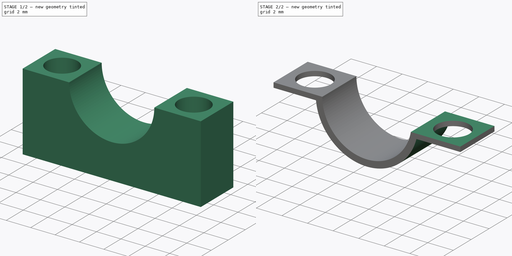
[diagram: build sequence overview — one tinted view per stage of 2, left to right]
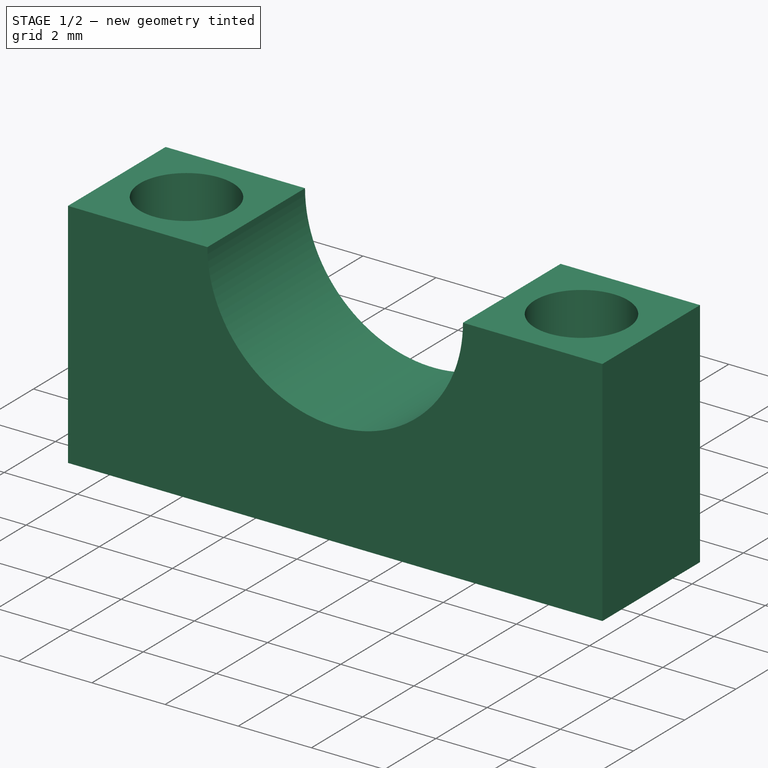
[diagram: stage 1 of 2 — iso view after this stage's code; geometry added in this stage tinted green]
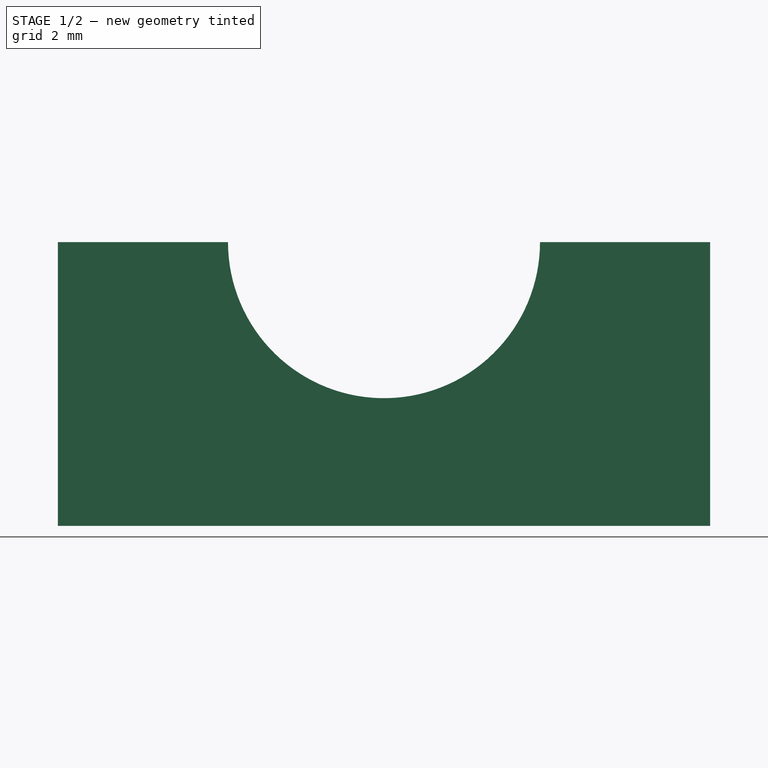
[diagram: stage 1 of 2 — front view after this stage's code; geometry added in this stage tinted green]
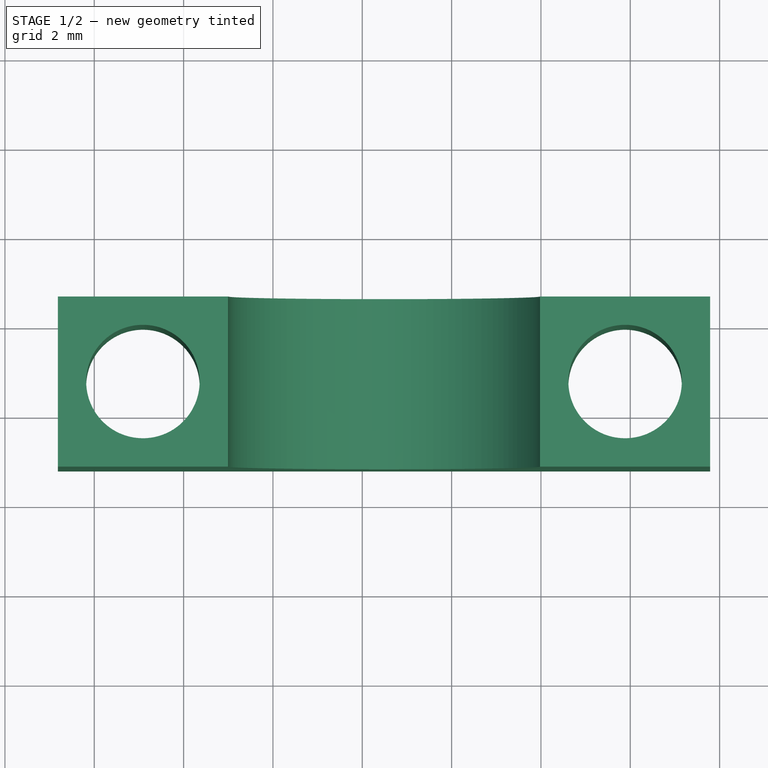
[diagram: stage 1 of 2 — top view after this stage's code; geometry added in this stage tinted green]
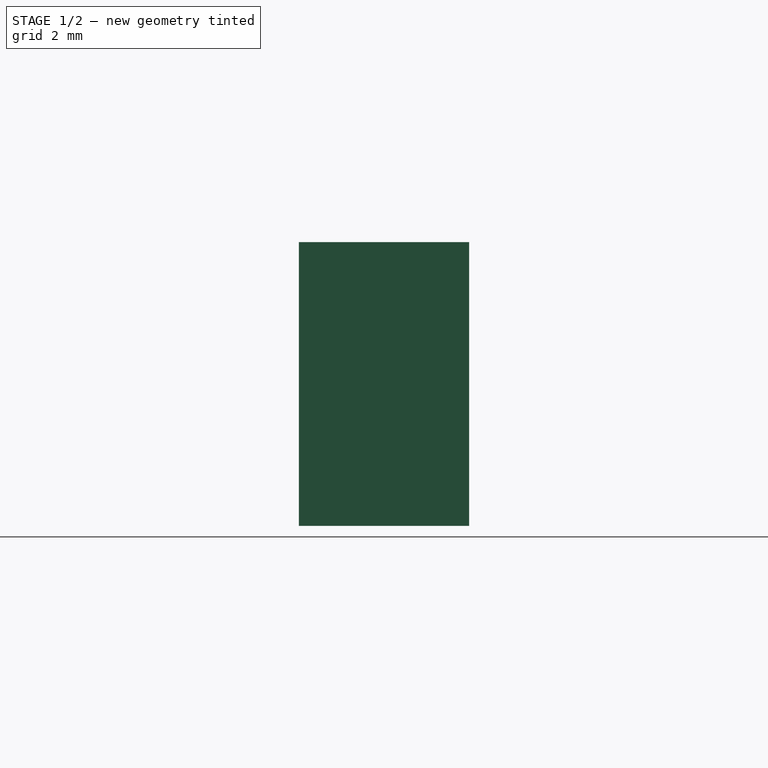
[diagram: stage 1 of 2 — right view after this stage's code; geometry added in this stage tinted green]
FCSTD DOCUMENT  (FreeCAD 1.0R39285 (Git))
Label: obd_wire_top
License: All rights reserved
LicenseURL: http://en.wikipedia.org/wiki/All_rights_reserved
objects: Sketcher::SketchObject×4, PartDesign::Pocket×3, Measure::MeasureLength×3, PartDesign::Plane×2, PartDesign::Pad×1, PartDesign::Body×1, App::DocumentObjectGroup×1
note: 23 computed .brp shape members not serialized (recipe doc carries the construction recipe); baked Part::Feature solids carry a one-line shape summary decoded from their .brp

FEATURE [Sketcher::SketchObject] Sketch
  ArcFitTolerance = 1e-06
  AttachmentSupport = -> [XY_Plane]
  FullyConstrained = false
  MakeInternals = false
  MapMode = 5
  sketch-geometry (8):
    g0: LineSegment StartX=1.18376 StartY=6.61182 StartZ=0 EndX=1.18376 EndY=2.80182 EndZ=0
    g1: LineSegment StartX=1.18376 StartY=2.80182 StartZ=0 EndX=15.7888 EndY=2.80182 EndZ=0
    g2: LineSegment StartX=15.7888 StartY=2.80182 StartZ=0 EndX=15.7888 EndY=6.61182 EndZ=0
    g3: LineSegment StartX=15.7888 StartY=6.61182 StartZ=0 EndX=1.18376 EndY=6.61182 EndZ=0
    g4: LineSegment [constr] StartX=1.18376 StartY=4.70682 StartZ=0 EndX=3.08876 EndY=4.70682 EndZ=0
    g5: LineSegment [constr] StartX=15.7888 StartY=4.70682 StartZ=0 EndX=13.8838 EndY=4.70682 EndZ=0
    g6: Circle CenterX=3.08876 CenterY=4.70682 CenterZ=0 NormalX=0 NormalY=0 NormalZ=1 AngleXU=0 Radius=1.27
    g7: Circle CenterX=13.8838 CenterY=4.70682 CenterZ=0 NormalX=0 NormalY=0 NormalZ=1 AngleXU=0 Radius=1.27
  constraints (20):
    c: Coincident(g0,g1)
    c: Coincident(g1,g2)
    c: Coincident(g2,g3)
    c: Coincident(g3,g0)
    c: Vertical(g0)
    c: Vertical(g2)
    c: Horizontal(g1)
    c: Horizontal(g3)
    c: Distance(g0,g2) = 14.605
    c: Distance(g1,g3) = 3.81
    c: Distance(g4) = 1.905
    c: Symmetric(g0,g0,g4)
    c: Horizontal(g4)
    c: Distance(g5) = 1.905
    c: Symmetric(g2,g2,g5)
    c: Horizontal(g5)
    c: Diameter(g6) = 2.54
    c: Coincident(g6,g4)
    c: Coincident(g7,g5)
    c: Equal(g7,g6)
FEATURE [PartDesign::Pad] Pad
  Direction = (0,0,1)
  Length = 6.35
  Length2 = 10
  Profile = -> Sketch
  ReferenceAxis = -> Sketch [N_Axis]
  Refine = true
  Suppressed = false
  Type = 0
FEATURE [PartDesign::Plane] DatumPlane
  AttachmentSupport = -> [Pad]
  Length = 60
  MapMode = 5
  Placement = pos=(0,2.80182,0) rot=(1,0,0;1.5708rad)
  ResizeMode = 0
  Width = 60
FEATURE [Sketcher::SketchObject] Sketch001
  ArcFitTolerance = 1e-06
  AttachmentSupport = -> [Pad]
  ExternalGeometry = -> [Pad]
  FullyConstrained = true
  MakeInternals = false
  MapMode = 5
  Placement = pos=(0,2.80182,0) rot=(1,0,0;1.5708rad)
  sketch-geometry (1):
    g0: Circle CenterX=8.48626 CenterY=6.35 CenterZ=0 NormalX=0 NormalY=0 NormalZ=1 AngleXU=0 Radius=3.4925
  constraints (2):
    c: Diameter(g0) = 6.985
    c: Symmetric(g-3,g-3,g0)
FEATURE [PartDesign::Pocket] Pocket
  BaseFeature = -> Pad
  Direction = (0,1,-2e-16)
  Length = 5
  Length2 = 5
  Profile = -> Sketch001
  ReferenceAxis = -> Sketch001 [N_Axis]
  Refine = true
  Suppressed = false
  Type = 1
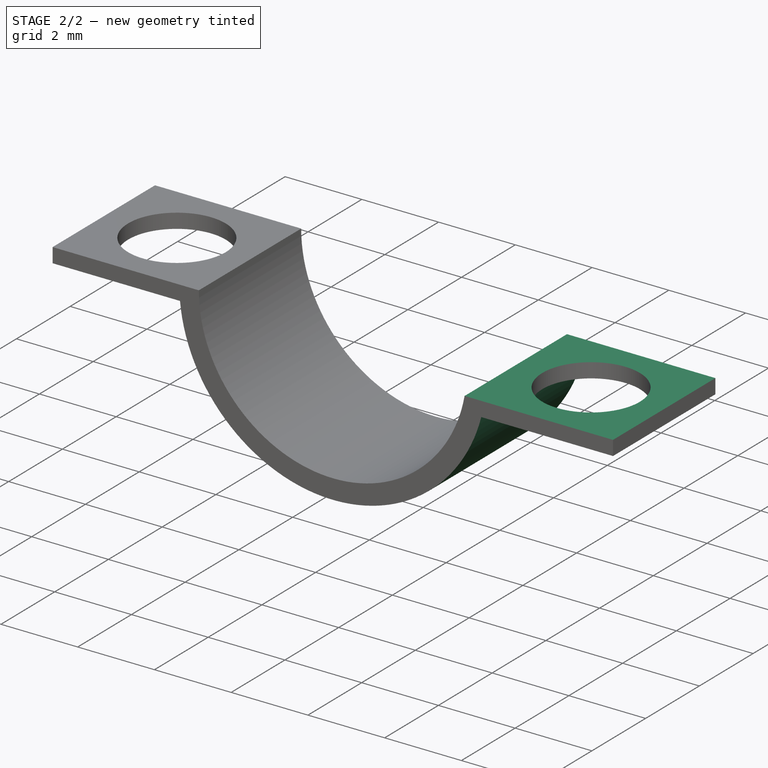
[diagram: stage 2 of 2 — iso view after this stage's code; geometry added in this stage tinted green]
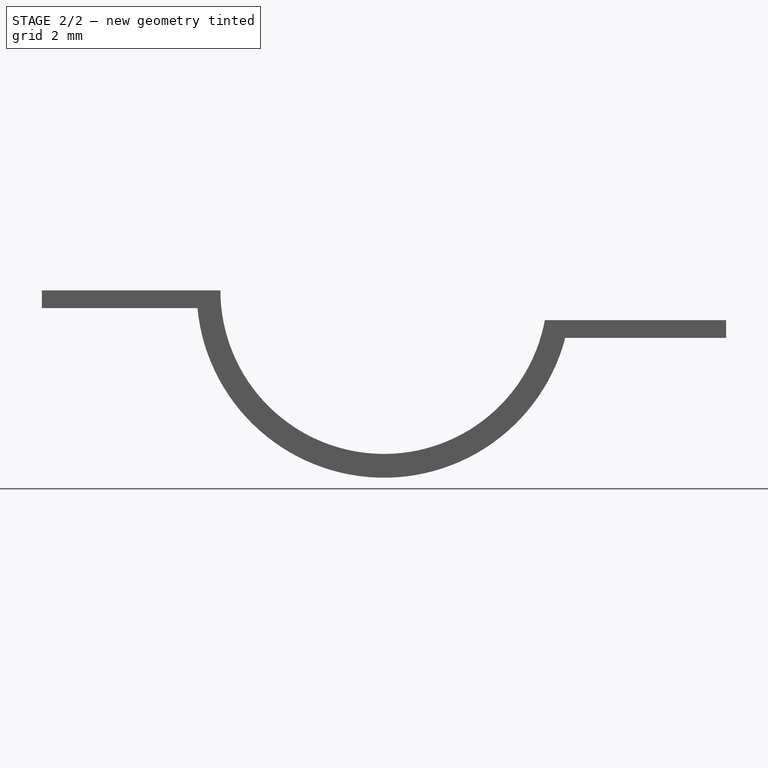
[diagram: stage 2 of 2 — front view after this stage's code; geometry added in this stage tinted green]
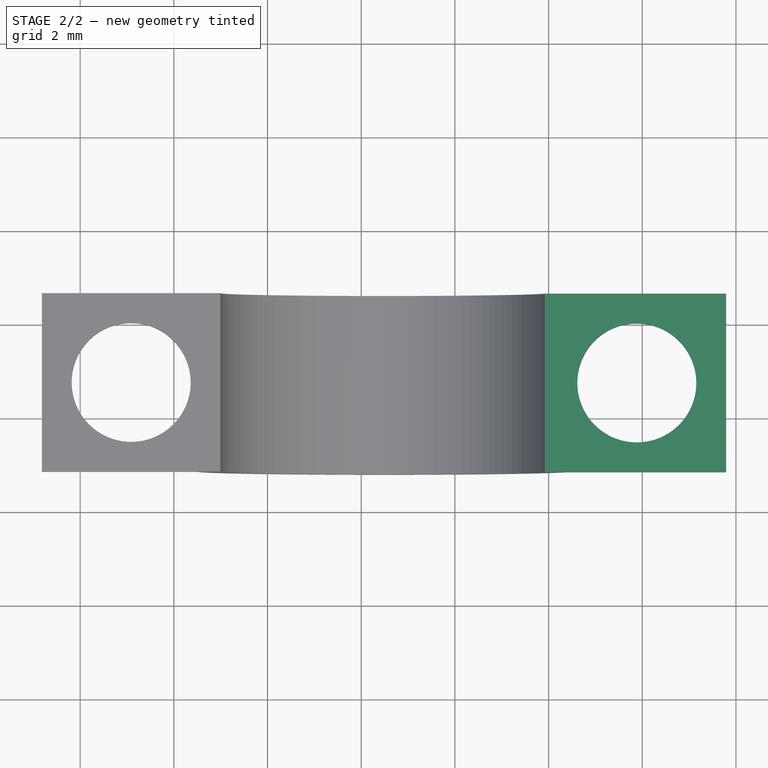
[diagram: stage 2 of 2 — top view after this stage's code; geometry added in this stage tinted green]
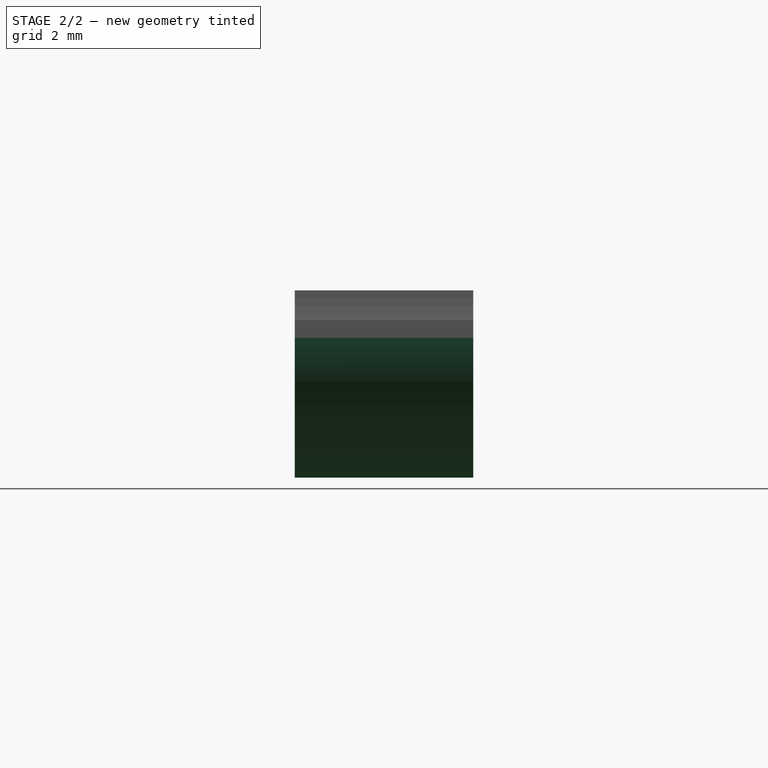
[diagram: stage 2 of 2 — right view after this stage's code; geometry added in this stage tinted green]
FEATURE [PartDesign::Plane] DatumPlane001
  AttachmentSupport = -> [Pocket]
  Length = 60
  MapMode = 5
  Placement = pos=(0,2.80182,0) rot=(1,0,0;1.5708rad)
  ResizeMode = 0
  Width = 60
FEATURE [Sketcher::SketchObject] Sketch003
  ArcFitTolerance = 1e-06
  AttachmentSupport = -> [XZ_Plane]
  ExternalGeometry = -> [Pocket]
  FullyConstrained = false
  MakeInternals = false
  MapMode = 5
  Placement = pos=(0,0,0) rot=(1,0,0;1.5708rad)
  sketch-geometry (5):
    g0: LineSegment StartX=15.7888 StartY=6.35 StartZ=0 EndX=15.7888 EndY=6.35 EndZ=0
    g1: LineSegment StartX=15.7888 StartY=6.35 StartZ=0 EndX=15.7888 EndY=5.715 EndZ=0
    g2: LineSegment StartX=15.7888 StartY=5.715 StartZ=0 EndX=10.3798 EndY=5.715 EndZ=0
    g3: LineSegment StartX=10.3798 StartY=5.715 StartZ=0 EndX=10.489 EndY=7.4666 EndZ=0
    g4: LineSegment StartX=10.489 StartY=7.4666 StartZ=0 EndX=15.7888 EndY=6.35 EndZ=0
  constraints (10):
    c: Coincident(g0,g-3)
    c: Coincident(g0,g-3)
    c: Distance(g1) = 0.635
    c: Coincident(g1,g0)
    c: Vertical(g1)
    c: Coincident(g2,g1)
    c: Horizontal(g2)
    c: Coincident(g3,g2)
    c: Coincident(g4,g3)
    c: Coincident(g4,g0)
FEATURE [PartDesign::Pocket] Pocket001
  BaseFeature = -> Pocket
  Direction = (0,1,-2e-16)
  Length = 5
  Length2 = 5
  Profile = -> Sketch003
  ReferenceAxis = -> Sketch003 [N_Axis]
  Refine = true
  Suppressed = false
  Type = 1
FEATURE [Sketcher::SketchObject] Sketch004
  ArcFitTolerance = 1e-06
  AttachmentSupport = -> [DatumPlane001]
  ExternalGeometry = -> [Pocket001]
  FullyConstrained = false
  MakeInternals = false
  MapMode = 5
  Placement = pos=(0,2.80182,0) rot=(1,0,0;1.5708rad)
  sketch-geometry (8):
    g0: ArcOfCircle CenterX=8.48626 CenterY=6.35 CenterZ=0 NormalX=0 NormalY=0 NormalZ=1 AngleXU=0 Radius=4.0005 StartAngle=3.23698 EndAngle=6.0264
    g1: LineSegment [constr] StartX=15.7888 StartY=5.715 StartZ=0 EndX=15.7888 EndY=5.334 EndZ=0
    g2: LineSegment [constr] StartX=1.18376 StartY=6.35 StartZ=0 EndX=1.18376 EndY=5.969 EndZ=0
    g3: LineSegment StartX=1.18376 StartY=5.969 StartZ=0 EndX=4.50394 EndY=5.969 EndZ=0
    g4: LineSegment StartX=15.7888 StartY=5.334 StartZ=0 EndX=12.3556 EndY=5.334 EndZ=0
    g5: LineSegment StartX=15.7888 StartY=5.334 StartZ=0 EndX=18.4948 EndY=-0.939653 EndZ=0
    g6: LineSegment StartX=18.4948 StartY=-0.939653 StartZ=0 EndX=0.279079 EndY=-0.939653 EndZ=0
    g7: LineSegment StartX=0.279079 StartY=-0.939653 StartZ=0 EndX=1.18376 EndY=5.969 EndZ=0
  constraints (19):
    c: Diameter(g0) = 8.001
    c: Coincident(g0,g-3)
    c: Distance(g1) = 0.381
    c: Coincident(g1,g-7)
    c: PointOnObject(g1,g-7)
    c: Distance(g2) = 0.381
    c: Coincident(g2,g-6)
    c: PointOnObject(g2,g-6)
    c: Coincident(g3,g2)
    c: Horizontal(g3)
    c: Coincident(g4,g1)
    c: Horizontal(g4)
    c: Coincident(g5,g1)
    c: Coincident(g6,g5)
    c: Horizontal(g6)
    c: Coincident(g7,g6)
    c: Coincident(g7,g2)
    c: Coincident(g0,g4)
    c: Coincident(g0,g3)
FEATURE [PartDesign::Pocket] Pocket002
  BaseFeature = -> Pocket001
  Direction = (0,1,-2e-16)
  Length = 5
  Length2 = 5
  Profile = -> Sketch004
  ReferenceAxis = -> Sketch004 [N_Axis]
  Refine = true
  Suppressed = false
  Type = 1
FEATURE [PartDesign::Body] Body
  AllowCompound = false
  Group = -> [Sketch,Pad,DatumPlane,Sketch001,Pocket,DatumPlane001,Sketch003,Pocket001,Sketch004,Pocket002]
  Origin = -> Origin
  Tip = -> Pocket002
FEATURE [Measure::MeasureLength] Length  label="Length: 0.5750 ""
  Elements = -> [Body]
  Length = 14.605
FEATURE [Measure::MeasureLength] Length001  label="Length001: 0.1500 ""
  Elements = -> [Body]
  Length = 3.81
FEATURE [Measure::MeasureLength] Length002  label="Length002: 0.2500 ""
  Elements = -> [Body]
  Length = 6.35
FEATURE [App::DocumentObjectGroup] Measurements
  Group = -> [Length,Length001,Length002]
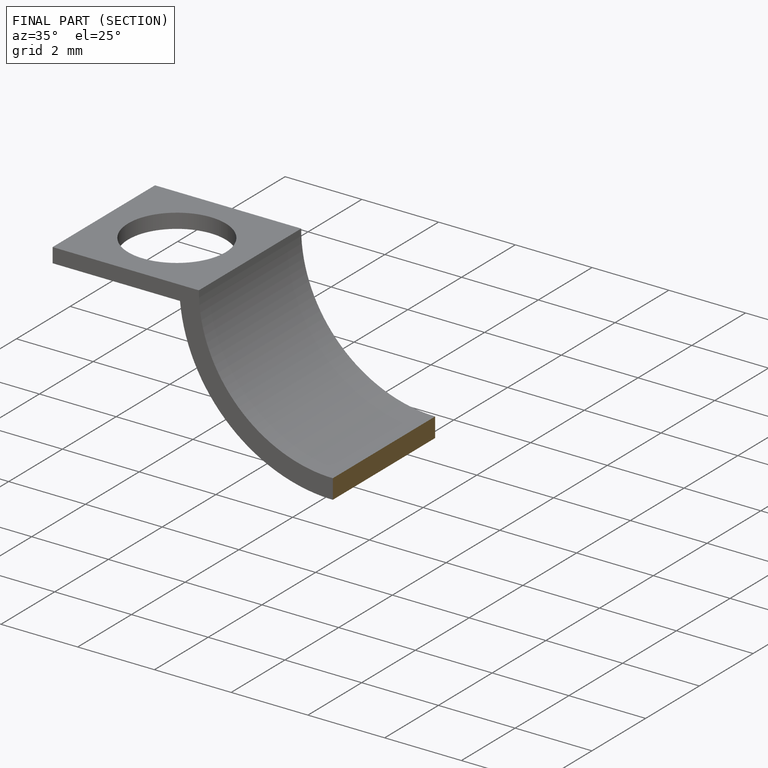
[diagram: finished part — half-section view (interior)]
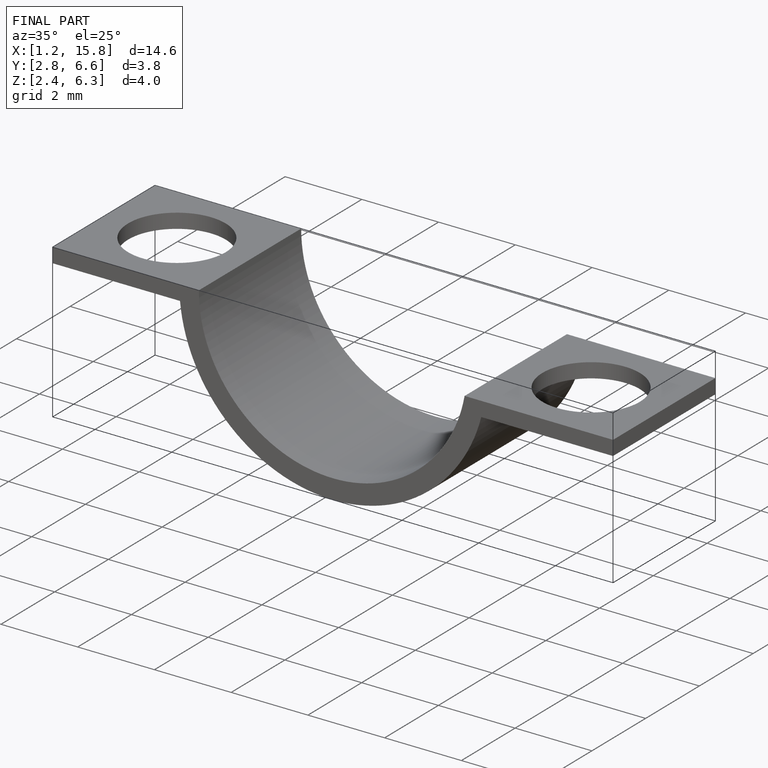
[diagram: finished part — iso view with bounding-box wireframe]
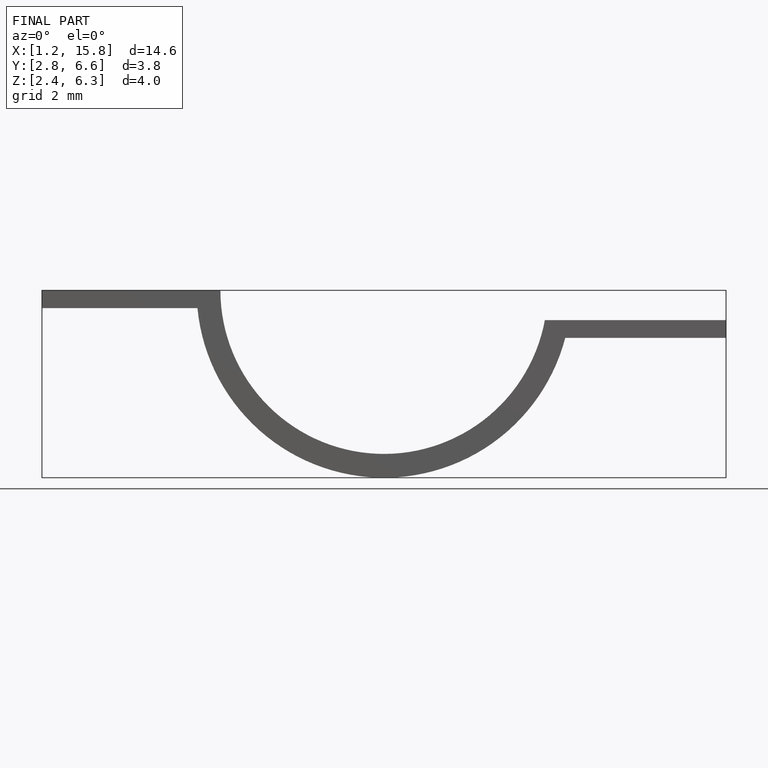
[diagram: finished part — front view with bounding-box wireframe]
